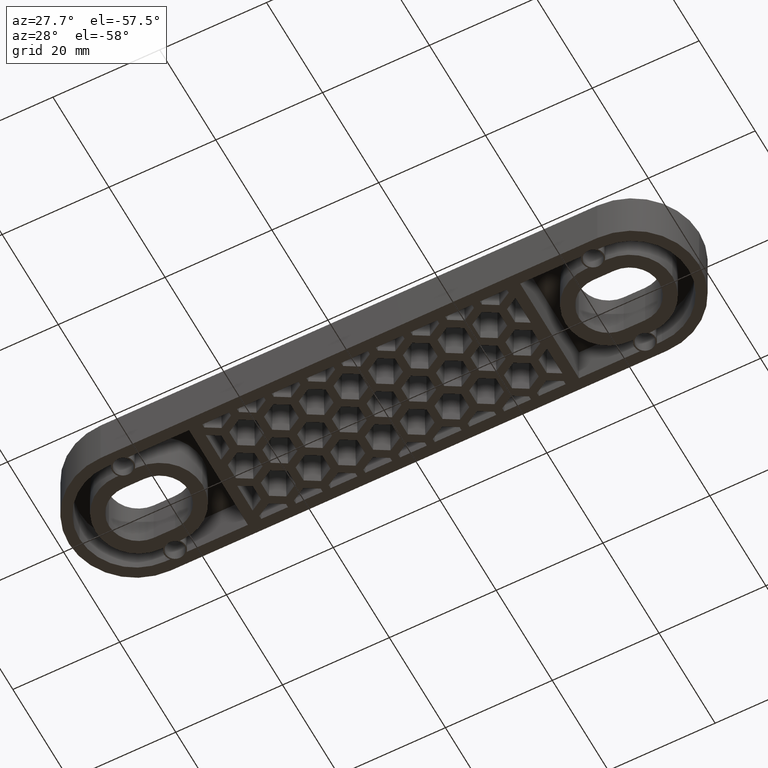
[diagram: clean part render]
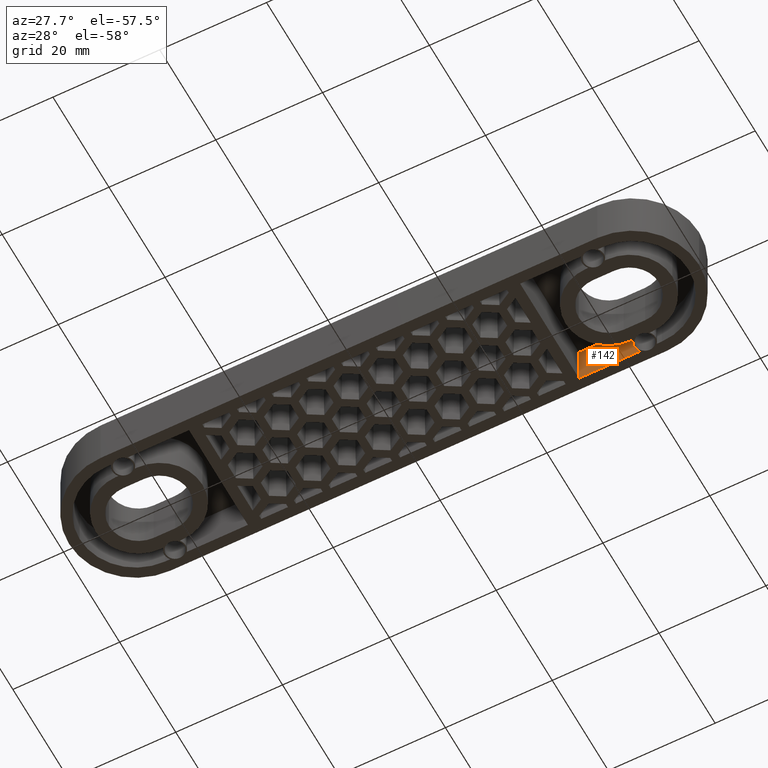
[diagram: same view with one face highlighted and labeled with its STEP entity id]
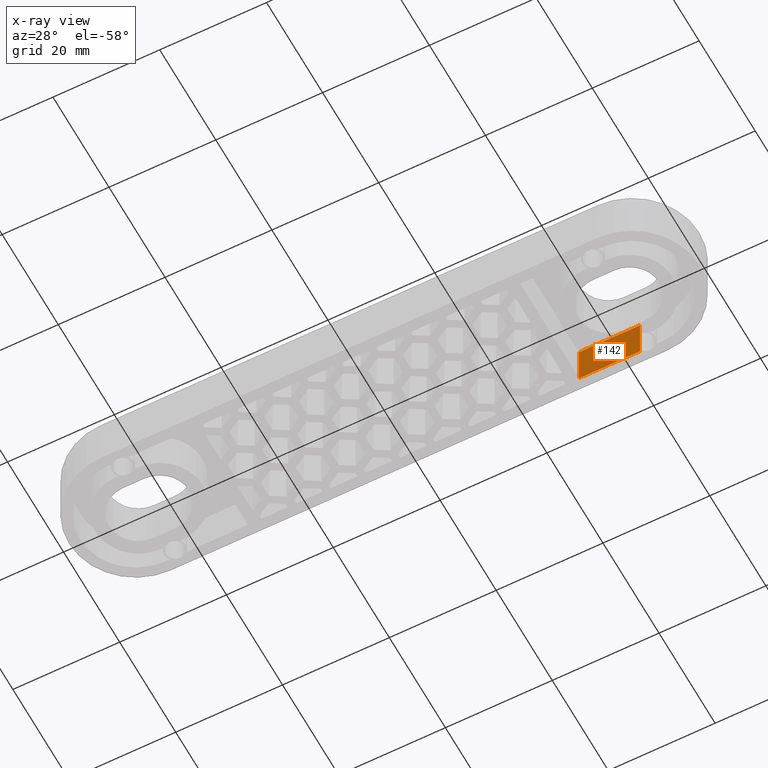
[diagram: x-ray of the same camera — body ghosted, the highlighted face saturated]
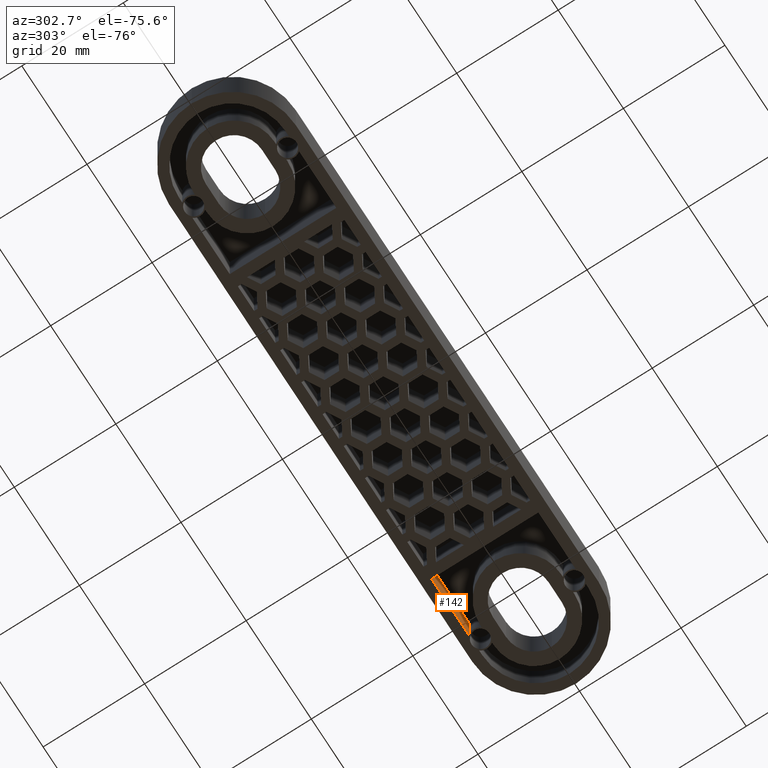
[diagram: same view with one face highlighted and labeled with its STEP entity id]
A machine part, auxiliary view. The second image highlights one B-rep face of the part: STEP entity #142.
The next image is the same camera in x-ray: the body ghosted, the highlighted face saturated — about 0% of this face is hidden behind the body in this view.
A second angle (auxiliary view) of the same face is appended — the face is thin or edge-on in the first view.
In plain terms, the highlighted planar face has unit normal (0, -1, 0).
Its self-contained STEP definition (entity closure, byte-faithful):
#142 = ADVANCED_FACE( '', ( #690 ), #691, .T. );
#690 = FACE_OUTER_BOUND( '', #1582, .T. );
#691 = PLANE( '', #1583 );
#1582 = EDGE_LOOP( '', ( #3100, #3101, #3102, #3103 ) );
#1583 = AXIS2_PLACEMENT_3D( '', #3104, #3105, #3106 );
#3100 = ORIENTED_EDGE( '', *, *, #5660, .T. );
#3101 = ORIENTED_EDGE( '', *, *, #6021, .T. );
#3102 = ORIENTED_EDGE( '', *, *, #5633, .F. );
#3103 = ORIENTED_EDGE( '', *, *, #6043, .F. );
#3104 = CARTESIAN_POINT( '', ( 31.0000000000000, 10.5000000000000, 1.32348694720577E-014 ) );
#3105 = DIRECTION( '', ( 0.000000000000000, -1.00000000000000, 6.12303176911189E-017 ) );
#3106 = DIRECTION( '', ( -1.00000000000000, 0.000000000000000, 0.000000000000000 ) );
#5633 = EDGE_CURVE( '', #6728, #6730, #6731, .T. );
#5660 = EDGE_CURVE( '', #6782, #6780, #6783, .T. );
#6021 = EDGE_CURVE( '', #6780, #6730, #7470, .T. );
#6043 = EDGE_CURVE( '', #6782, #6728, #7499, .T. );
#6728 = VERTEX_POINT( '', #8495 );
#6730 = VERTEX_POINT( '', #8498 );
#6731 = LINE( '', #8499, #8500 );
#6780 = VERTEX_POINT( '', #8560 );
#6782 = VERTEX_POINT( '', #8562 );
#6783 = LINE( '', #8563, #8564 );
#7470 = LINE( '', #9583, #9584 );
#7499 = LINE( '', #9630, #9631 );
#8495 = CARTESIAN_POINT( '', ( 31.0000000000000, 10.5000000000000, 8.00000000000001 ) );
#8498 = CARTESIAN_POINT( '', ( 42.4387505004004, 10.5000000000000, 8.00000000000001 ) );
#8499 = CARTESIAN_POINT( '', ( 31.0000000000000, 10.5000000000000, 8.00000000000001 ) );
#8500 = VECTOR( '', #11115, 1000.00000000000 );
#8560 = CARTESIAN_POINT( '', ( 42.4387505004004, 10.5000000000000, 1.32348694720577E-014 ) );
#8562 = CARTESIAN_POINT( '', ( 31.0000000000000, 10.5000000000000, 1.32348694720577E-014 ) );
#8563 = CARTESIAN_POINT( '', ( 31.0000000000000, 10.5000000000000, 1.32348694720577E-014 ) );
#8564 = VECTOR( '', #11172, 1000.00000000000 );
#9583 = CARTESIAN_POINT( '', ( 42.4387505004004, 10.5000000000000, -6.42918335756748E-016 ) );
#9584 = VECTOR( '', #11589, 1000.00000000000 );
#9630 = CARTESIAN_POINT( '', ( 31.0000000000000, 10.5000000000000, 1.32348694720577E-014 ) );
#9631 = VECTOR( '', #11619, 1000.00000000000 );
#11115 = DIRECTION( '', ( 1.00000000000000, 0.000000000000000, 0.000000000000000 ) );
#11172 = DIRECTION( '', ( 1.00000000000000, 0.000000000000000, 0.000000000000000 ) );
#11589 = DIRECTION( '', ( 0.000000000000000, 6.12303176911189E-017, 1.00000000000000 ) );
#11619 = DIRECTION( '', ( 0.000000000000000, 6.12303176911189E-017, 1.00000000000000 ) );